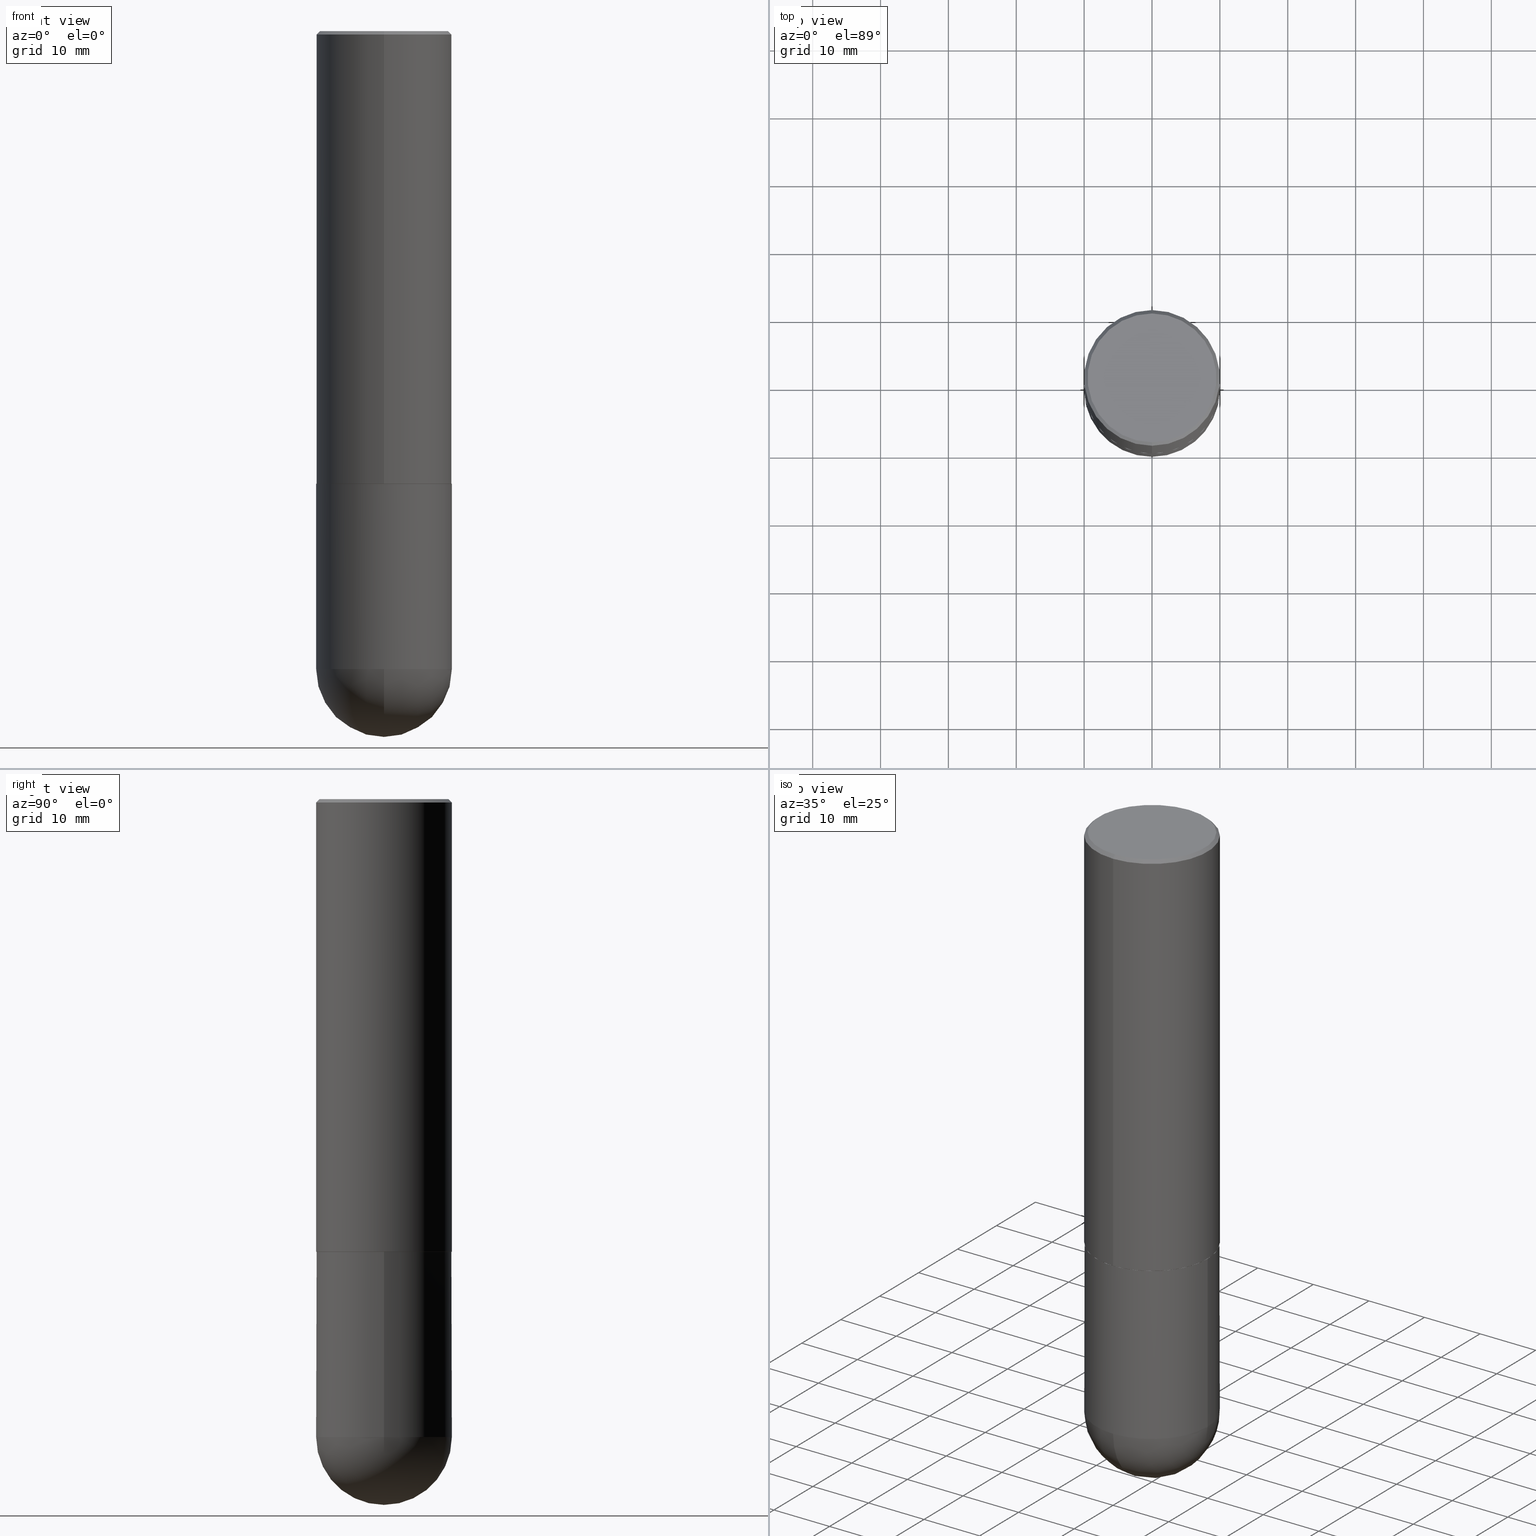
[diagram: canonical four-view strip — front | top / right | iso, engineering-drawing reading convention]
A machine part, canonical four-view strip (front | top / right | iso — engineering-drawing reading convention). The complete STEP part file that produces these views, byte-faithful:
ISO-10303-21;
HEADER;
FILE_DESCRIPTION (( 'STEP AP203' ),
    '1' );
FILE_NAME ('44579.STEP',
    '2024-04-10T11:46:11',
    ( '' ),
    ( '' ),
    'SwSTEP 2.0',
    'SolidWorks 2023',
    '' );
FILE_SCHEMA (( 'CONFIG_CONTROL_DESIGN' ));
ENDSEC;

DATA;
#1 = VERTEX_POINT ( 'NONE', #52 ) ;
#2 = DIRECTION ( 'NONE',  ( -4.937700262164378437E-15, -0.7071067811865208164, 0.7071067811865739960 ) ) ;
#3 = FACE_OUTER_BOUND ( 'NONE', #51, .T. ) ;
#4 = DIRECTION ( 'NONE',  ( -7.105427357600999492E-15, -1.000000000000000000, 0.000000000000000000 ) ) ;
#5 = CLOSED_SHELL ( 'NONE', ( #266, #143, #68, #91, #303 ) ) ;
#6 = AXIS2_PLACEMENT_3D ( 'NONE', #20, #127, #362 ) ;
#7 = APPLICATION_CONTEXT ( 'configuration controlled 3d designs of mechanical parts and assemblies' ) ;
#8 = PLANE ( 'NONE',  #89 ) ;
#9 = CARTESIAN_POINT ( 'NONE',  ( 8.719071180016067419E-29, -1.339545650693076387E-14, -3.700800000000000090 ) ) ;
#10 = CARTESIAN_POINT ( 'NONE',  ( 6.420003766167635957E-29, -9.164210326870732173E-15, -2.625000000000000444 ) ) ;
#11 = AXIS2_PLACEMENT_3D ( 'NONE', #277, #250, #290 ) ;
#12 = APPROVAL_PERSON_ORGANIZATION ( #187, #304, #70 ) ;
#13 = APPROVAL_DATE_TIME ( #328, #76 ) ;
#14 = PERSON_AND_ORGANIZATION ( #201, #183 ) ;
#15 = ORIENTED_EDGE ( 'NONE', *, *, #55, .F. ) ;
#16 = VERTEX_POINT ( 'NONE', #211 ) ;
#17 = AXIS2_PLACEMENT_3D ( 'NONE', #44, #233, #36 ) ;
#18 = EDGE_CURVE ( 'NONE', #121, #236, #56, .T. ) ;
#19 = ORIENTED_EDGE ( 'NONE', *, *, #363, .T. ) ;
#20 = CARTESIAN_POINT ( 'NONE',  ( 0.000000000000000000, 0.000000000000000000, 0.000000000000000000 ) ) ;
#21 = CARTESIAN_POINT ( 'NONE',  ( 9.050190957929953666E-29, -1.292127413879071357E-14, -3.700800000000000090 ) ) ;
#22 = ORIENTED_EDGE ( 'NONE', *, *, #222, .F. ) ;
#23 = CARTESIAN_POINT ( 'NONE',  ( 2.749192406205083217E-15, 0.3936999999999999389, -0.02000000000000146105 ) ) ;
#24 = AXIS2_PLACEMENT_3D ( 'NONE', #344, #186, #29 ) ;
#25 = AXIS2_PLACEMENT_3D ( 'NONE', #42, #386, #133 ) ;
#26 = CARTESIAN_POINT ( 'NONE',  ( -2.742209443527332516E-15, -0.3927000000000091529, -2.625999999999999446 ) ) ;
#27 = ORIENTED_EDGE ( 'NONE', *, *, #86, .T. ) ;
#28 = CC_DESIGN_DATE_AND_TIME_ASSIGNMENT ( #30, #351, ( #175 ) ) ;
#29 = DIRECTION ( 'NONE',  ( -6.982962677686265133E-15, -1.000000000000000000, 4.173946514383900962E-15 ) ) ;
#30 = DATE_AND_TIME ( #253, #140 ) ;
#31 = PRODUCT_DEFINITION_SHAPE ( 'NONE', 'NONE',  #292 ) ;
#32 = DIRECTION ( 'NONE',  ( 5.024295867787889629E-15, 0.7071067811865257013, 0.7071067811865691111 ) ) ;
#33 = DATE_AND_TIME ( #285, #288 ) ;
#34 = VECTOR ( 'NONE', #102, 39.37007874015748143 ) ;
#35 = DIRECTION ( 'NONE',  ( -2.445468806185136597E-29, 3.491481338843145583E-15, 1.000000000000000000 ) ) ;
#36 = DIRECTION ( 'NONE',  ( 1.000000000000000000, -6.982962677686267499E-15, 0.000000000000000000 ) ) ;
#37 = ADVANCED_FACE ( 'NONE', ( #217 ), #198, .T. ) ;
#38 = LINE ( 'NONE', #294, #345 ) ;
#39 = DIRECTION ( 'NONE',  ( -6.982962677686265922E-15, -1.000000000000000000, 4.163344669033672479E-15 ) ) ;
#40 = CIRCLE ( 'NONE', #252, 0.3937000000000003830 ) ;
#41 = EDGE_CURVE ( 'NONE', #405, #236, #377, .T. ) ;
#42 = CARTESIAN_POINT ( 'NONE',  ( -5.529739359596063730E-45, 7.893405734614422993E-31, 2.260990234216733244E-16 ) ) ;
#43 = DIRECTION ( 'NONE',  ( -2.445468806185136597E-29, 3.491481338843145583E-15, 1.000000000000000000 ) ) ;
#44 = CARTESIAN_POINT ( 'NONE',  ( 6.421801085042169169E-29, -9.168629995802101197E-15, -2.626000000000000334 ) ) ;
#45 = APPROVAL_ROLE ( '' ) ;
#46 = AXIS2_PLACEMENT_3D ( 'NONE', #21, #248, #246 ) ;
#47 = EDGE_CURVE ( 'NONE', #376, #300, #113, .T. ) ;
#48 = CIRCLE ( 'NONE', #387, 0.3736999999999997546 ) ;
#49 = PERSON_AND_ORGANIZATION ( #201, #183 ) ;
#50 = ORIENTED_EDGE ( 'NONE', *, *, #168, .F. ) ;
#51 = EDGE_LOOP ( 'NONE', ( #221, #27, #306, #367, #138 ) ) ;
#52 = CARTESIAN_POINT ( 'NONE',  ( -2.742209443527332516E-15, -0.3927000000000091529, -2.625999999999999446 ) ) ;
#53 = AXIS2_PLACEMENT_3D ( 'NONE', #193, #73, #164 ) ;
#54 = CARTESIAN_POINT ( 'NONE',  ( 4.891431440889647024E-31, -6.982255487139634738E-17, -0.02000000000000008715 ) ) ;
#55 = EDGE_CURVE ( 'NONE', #1, #333, #287, .T. ) ;
#56 = LINE ( 'NONE', #247, #192 ) ;
#57 = DIRECTION ( 'NONE',  ( -2.445715720444812897E-29, 3.491127743569801887E-15, 1.000000000000000000 ) ) ;
#58 = ORIENTED_EDGE ( 'NONE', *, *, #272, .F. ) ;
#59 = ORIENTED_EDGE ( 'NONE', *, *, #18, .F. ) ;
#60 = COORDINATED_UNIVERSAL_TIME_OFFSET ( 5, 0, .BEHIND. ) ;
#61 = CARTESIAN_POINT ( 'NONE',  ( 9.050190957929953666E-29, -1.292127413879071357E-14, -3.700800000000000090 ) ) ;
#62 = EDGE_CURVE ( 'NONE', #1, #118, #352, .T. ) ;
#63 = ORIENTED_EDGE ( 'NONE', *, *, #168, .T. ) ;
#64 = CONICAL_SURFACE ( 'NONE', #205, 0.3926999999999999935, 0.7853981633974141952 ) ;
#65 = DIRECTION ( 'NONE',  ( 6.982962677686265922E-15, 1.000000000000000000, -4.163344669033671690E-15 ) ) ;
#66 = DIRECTION ( 'NONE',  ( 2.438088387897960049E-29, -3.491481338843145188E-15, -1.000000000000000000 ) ) ;
#67 = ORIENTED_EDGE ( 'NONE', *, *, #314, .F. ) ;
#68 = ADVANCED_FACE ( 'NONE', ( #307 ), #159, .T. ) ;
#69 = CARTESIAN_POINT ( 'NONE',  ( 0.3936999999999999389, -2.749192406205082822E-15, 1.919750796630859611E-29 ) ) ;
#70 = APPROVAL_ROLE ( '' ) ;
#71 = CYLINDRICAL_SURFACE ( 'NONE', #53, 0.3937000000000001609 ) ;
#72 = APPROVAL_STATUS ( 'not_yet_approved' ) ;
#73 = DIRECTION ( 'NONE',  ( -2.445715720444812897E-29, 3.491127743569801887E-15, 1.000000000000000000 ) ) ;
#74 = DIRECTION ( 'NONE',  ( -1.000000000000000000, 7.105427357601001070E-15, -4.926315508542082329E-29 ) ) ;
#75 = VERTEX_POINT ( 'NONE', #92 ) ;
#76 = APPROVAL ( #154, 'UNSPECIFIED' ) ;
#77 = AXIS2_PLACEMENT_3D ( 'NONE', #188, #251, #161 ) ;
#78 = DIRECTION ( 'NONE',  ( 4.937700262164541731E-15, 0.7071067811865442421, -0.7071067811865507924 ) ) ;
#79 =( GEOMETRIC_REPRESENTATION_CONTEXT ( 3 ) GLOBAL_UNCERTAINTY_ASSIGNED_CONTEXT ( ( #239 ) ) GLOBAL_UNIT_ASSIGNED_CONTEXT ( ( #212, #312, #370 ) ) REPRESENTATION_CONTEXT ( 'NONE', 'WORKASPACE' ) );
#80 = APPLICATION_CONTEXT ( 'configuration controlled 3d designs of mechanical parts and assemblies' ) ;
#81 = MANIFOLD_SOLID_BREP ( 'Body-Move/Copy2[1]', #5 ) ;
#82 = CARTESIAN_POINT ( 'NONE',  ( 0.000000000000000000, 0.000000000000000000, 0.000000000000000000 ) ) ;
#83 = EDGE_CURVE ( 'NONE', #118, #236, #404, .T. ) ;
#84 = CARTESIAN_POINT ( 'NONE',  ( -5.529739359596063730E-45, 7.893405734614422993E-31, 2.260990234216733244E-16 ) ) ;
#85 = AXIS2_PLACEMENT_3D ( 'NONE', #10, #235, #321 ) ;
#86 = EDGE_CURVE ( 'NONE', #311, #376, #412, .T. ) ;
#87 = EDGE_CURVE ( 'NONE', #213, #300, #129, .T. ) ;
#88 = CC_DESIGN_DATE_AND_TIME_ASSIGNMENT ( #180, #117, ( #292 ) ) ;
#89 = AXIS2_PLACEMENT_3D ( 'NONE', #390, #114, #107 ) ;
#90 = PERSON_AND_ORGANIZATION ( #201, #183 ) ;
#91 = ADVANCED_FACE ( 'NONE', ( #384 ), #148, .F. ) ;
#92 = CARTESIAN_POINT ( 'NONE',  ( 2.749192406205172752E-15, 0.3936999999999870048, -3.700800000000001866 ) ) ;
#93 = ORIENTED_EDGE ( 'NONE', *, *, #395, .T. ) ;
#94 = PERSON_AND_ORGANIZATION_ROLE ( 'design_owner' ) ;
#95 = DIRECTION ( 'NONE',  ( 1.000000000000000000, -6.982962677686269866E-15, 0.000000000000000000 ) ) ;
#96 = ORIENTED_EDGE ( 'NONE', *, *, #47, .T. ) ;
#97 = AXIS2_PLACEMENT_3D ( 'NONE', #406, #382, #178 ) ;
#98 = PERSON_AND_ORGANIZATION_ROLE ( 'classification_officer' ) ;
#99 = APPROVAL_PERSON_ORGANIZATION ( #403, #76, #203 ) ;
#100 = DIRECTION ( 'NONE',  ( 2.445715720444812897E-29, -3.491127743569801887E-15, -1.000000000000000000 ) ) ;
#101 = ORIENTED_EDGE ( 'NONE', *, *, #86, .F. ) ;
#102 = DIRECTION ( 'NONE',  ( -2.445468806185136877E-29, 3.491481338843145188E-15, 1.000000000000000000 ) ) ;
#103 = ORIENTED_EDGE ( 'NONE', *, *, #249, .T. ) ;
#104 = DIRECTION ( 'NONE',  ( -1.000000000000000000, 6.982962677686265922E-15, -4.883557194083112340E-29 ) ) ;
#105 = ORIENTED_EDGE ( 'NONE', *, *, #395, .F. ) ;
#106 = CC_DESIGN_APPROVAL ( #130, ( #338 ) ) ;
#107 = DIRECTION ( 'NONE',  ( -6.982962677686265922E-15, -1.000000000000000000, 3.491127743569801887E-15 ) ) ;
#108 = ORIENTED_EDGE ( 'NONE', *, *, #185, .T. ) ;
#109 = CARTESIAN_POINT ( 'NONE',  ( 2.793854037008779363E-15, 0.3926999999999908897, -2.626000000000002554 ) ) ;
#110 = ADVANCED_FACE ( 'NONE', ( #379 ), #281, .F. ) ;
#111 = CARTESIAN_POINT ( 'NONE',  ( 6.421801085042169169E-29, -9.168629995802101197E-15, -2.626000000000000334 ) ) ;
#112 = DIRECTION ( 'NONE',  ( 1.000000000000000000, -6.982962677686269866E-15, 0.000000000000000000 ) ) ;
#113 = CIRCLE ( 'NONE', #204, 0.3937000000000000499 ) ;
#114 = DIRECTION ( 'NONE',  ( -2.445715720444812897E-29, 3.491127743569801887E-15, 1.000000000000000000 ) ) ;
#115 = VERTEX_POINT ( 'NONE', #215 ) ;
#116 = CARTESIAN_POINT ( 'NONE',  ( 4.891431440889647024E-31, -6.982255487139634738E-17, -0.02000000000000008715 ) ) ;
#117 = DATE_TIME_ROLE ( 'creation_date' ) ;
#118 = VERTEX_POINT ( 'NONE', #313 ) ;
#119 = EDGE_LOOP ( 'NONE', ( #15, #402 ) ) ;
#120 = DIRECTION ( 'NONE',  ( 2.445715720444812897E-29, -3.491127743569801887E-15, -1.000000000000000000 ) ) ;
#121 = VERTEX_POINT ( 'NONE', #408 ) ;
#122 = PERSON_AND_ORGANIZATION ( #201, #183 ) ;
#123 = CIRCLE ( 'NONE', #97, 0.3937000000000000499 ) ;
#124 = CALENDAR_DATE ( 2024, 10, 4 ) ;
#125 = DIRECTION ( 'NONE',  ( -2.445715720444812897E-29, 3.491127743569801887E-15, 1.000000000000000000 ) ) ;
#126 = EDGE_LOOP ( 'NONE', ( #59, #105, #147, #353 ) ) ;
#127 = DIRECTION ( 'NONE',  ( 0.000000000000000000, 0.000000000000000000, 1.000000000000000000 ) ) ;
#128 = DIRECTION ( 'NONE',  ( 1.000000000000000000, -6.982962677686269866E-15, 0.000000000000000000 ) ) ;
#129 = LINE ( 'NONE', #69, #318 ) ;
#130 = APPROVAL ( #238, 'UNSPECIFIED' ) ;
#131 = DIRECTION ( 'NONE',  ( -2.445468806185136877E-29, 3.491481338843145188E-15, 1.000000000000000000 ) ) ;
#132 = ORIENTED_EDGE ( 'NONE', *, *, #158, .F. ) ;
#133 = DIRECTION ( 'NONE',  ( -6.982962677686265922E-15, -1.000000000000000000, 3.491127743569801493E-15 ) ) ;
#134 = CIRCLE ( 'NONE', #365, 0.3937000000000002720 ) ;
#135 = DIRECTION ( 'NONE',  ( -2.445468806185136597E-29, 3.491481338843145583E-15, 1.000000000000000000 ) ) ;
#136 = CYLINDRICAL_SURFACE ( 'NONE', #240, 0.3937000000000001609 ) ;
#137 = DIRECTION ( 'NONE',  ( -2.445715720444812897E-29, 3.491127743569801887E-15, 1.000000000000000000 ) ) ;
#138 = ORIENTED_EDGE ( 'NONE', *, *, #314, .T. ) ;
#139 = CARTESIAN_POINT ( 'NONE',  ( -0.3936999999999999389, -8.247545316608896543E-15, -3.700800000000000090 ) ) ;
#140 = LOCAL_TIME ( 7, 46, 11.00000000000000000, #257 ) ;
#141 = DIRECTION ( 'NONE',  ( -6.982962677686265133E-15, -1.000000000000000000, 4.173946514383900962E-15 ) ) ;
#142 = PERSON_AND_ORGANIZATION_ROLE ( 'creator' ) ;
#143 = ADVANCED_FACE ( 'NONE', ( #341 ), #375, .T. ) ;
#144 = EDGE_CURVE ( 'NONE', #75, #311, #295, .T. ) ;
#145 = CC_DESIGN_PERSON_AND_ORGANIZATION_ASSIGNMENT ( #122, #243, ( #338 ) ) ;
#146 = AXIS2_PLACEMENT_3D ( 'NONE', #354, #135, #112 ) ;
#147 = ORIENTED_EDGE ( 'NONE', *, *, #268, .T. ) ;
#148 = PLANE ( 'NONE',  #165 ) ;
#149 = CONICAL_SURFACE ( 'NONE', #24, 0.3926999999999999935, 0.7853981633974141952 ) ;
#150 = EDGE_LOOP ( 'NONE', ( #103, #242, #50, #189 ) ) ;
#151 = CIRCLE ( 'NONE', #330, 0.3937000000000003830 ) ;
#152 = CARTESIAN_POINT ( 'NONE',  ( 8.719071180016067419E-29, -1.339545650693076387E-14, -3.700800000000000090 ) ) ;
#153 = DIRECTION ( 'NONE',  ( 6.982962677686265133E-15, 1.000000000000000000, -3.491137977679279424E-15 ) ) ;
#154 = APPROVAL_STATUS ( 'not_yet_approved' ) ;
#155 = CARTESIAN_POINT ( 'NONE',  ( 9.698686197413653023E-29, -1.474594553779209640E-14, -4.094500000000000028 ) ) ;
#156 = EDGE_LOOP ( 'NONE', ( #208, #397, #63, #275 ) ) ;
#157 = PRODUCT ( '44579', '44579', '', ( #374 ) ) ;
#158 = EDGE_CURVE ( 'NONE', #333, #16, #274, .T. ) ;
#159 = SPHERICAL_SURFACE ( 'NONE', #77, 0.3937000000000003830 ) ;
#160 = AXIS2_PLACEMENT_3D ( 'NONE', #152, #104, #65 ) ;
#161 = DIRECTION ( 'NONE',  ( 6.982962677686265922E-15, 1.000000000000000000, -4.163344669033671690E-15 ) ) ;
#162 = FACE_OUTER_BOUND ( 'NONE', #190, .T. ) ;
#163 = COORDINATED_UNIVERSAL_TIME_OFFSET ( 5, 0, .BEHIND. ) ;
#164 = DIRECTION ( 'NONE',  ( -6.982962677686265922E-15, -1.000000000000000000, 3.491127743569801493E-15 ) ) ;
#165 = AXIS2_PLACEMENT_3D ( 'NONE', #191, #66, #317 ) ;
#166 = CC_DESIGN_APPROVAL ( #76, ( #292 ) ) ;
#167 = DIRECTION ( 'NONE',  ( -2.445715720444812897E-29, 3.491127743569801887E-15, 1.000000000000000000 ) ) ;
#168 = EDGE_CURVE ( 'NONE', #236, #405, #123, .T. ) ;
#169 = FACE_OUTER_BOUND ( 'NONE', #126, .T. ) ;
#170 = DIRECTION ( 'NONE',  ( 2.445715720444812897E-29, -3.491127743569801887E-15, -1.000000000000000000 ) ) ;
#171 = DATE_AND_TIME ( #342, #302 ) ;
#172 = AXIS2_PLACEMENT_3D ( 'NONE', #82, #325, #258 ) ;
#173 = EDGE_CURVE ( 'NONE', #372, #213, #323, .T. ) ;
#174 = CC_DESIGN_PERSON_AND_ORGANIZATION_ASSIGNMENT ( #214, #94, ( #157 ) ) ;
#175 = SECURITY_CLASSIFICATION ( '', '', #368 ) ;
#176 = ORIENTED_EDGE ( 'NONE', *, *, #272, .T. ) ;
#177 = DIRECTION ( 'NONE',  ( -6.982962677686265922E-15, -1.000000000000000000, 3.491127743569801493E-15 ) ) ;
#178 = DIRECTION ( 'NONE',  ( -6.982962677686265133E-15, -1.000000000000000000, 3.491137977679279424E-15 ) ) ;
#179 = ORIENTED_EDGE ( 'NONE', *, *, #385, .F. ) ;
#180 = DATE_AND_TIME ( #394, #359 ) ;
#181 = DIRECTION ( 'NONE',  ( -2.445468806185136597E-29, 3.491481338843145583E-15, 1.000000000000000000 ) ) ;
#182 = CIRCLE ( 'NONE', #273, 0.3936999999999999389 ) ;
#183 = ORGANIZATION ( 'UNSPECIFIED', 'UNSPECIFIED', '' ) ;
#184 = ORIENTED_EDGE ( 'NONE', *, *, #62, .T. ) ;
#185 = EDGE_CURVE ( 'NONE', #311, #372, #182, .T. ) ;
#186 = DIRECTION ( 'NONE',  ( -2.445715720444812897E-29, 3.491127743569801887E-15, 1.000000000000000000 ) ) ;
#187 = PERSON_AND_ORGANIZATION ( #201, #183 ) ;
#188 = CARTESIAN_POINT ( 'NONE',  ( 8.719071180016067419E-29, -1.339545650693076387E-14, -3.700800000000000090 ) ) ;
#189 = ORIENTED_EDGE ( 'NONE', *, *, #83, .F. ) ;
#190 = EDGE_LOOP ( 'NONE', ( #22, #334, #356, #241 ) ) ;
#191 = CARTESIAN_POINT ( 'NONE',  ( 2.749192406205147114E-15, 0.3936999999999908906, -2.626000000000002110 ) ) ;
#192 = VECTOR ( 'NONE', #410, 39.37007874015748143 ) ;
#193 = CARTESIAN_POINT ( 'NONE',  ( 0.000000000000000000, 0.000000000000000000, 0.000000000000000000 ) ) ;
#194 = CARTESIAN_POINT ( 'NONE',  ( 0.000000000000000000, 0.000000000000000000, 0.000000000000000000 ) ) ;
#195 = ADVANCED_FACE ( 'NONE', ( #219 ), #149, .T. ) ;
#196 = DIMENSIONAL_EXPONENTS ( 1.000000000000000000, 0.000000000000000000, 0.000000000000000000, 0.000000000000000000, 0.000000000000000000, 0.000000000000000000, 0.000000000000000000 ) ;
#197 = CARTESIAN_POINT ( 'NONE',  ( -2.700978061722651252E-15, -0.3937000000000001054, -0.01999999999999870978 ) ) ;
#198 = CONICAL_SURFACE ( 'NONE', #337, 0.3937000000000000499, 0.7853981633974471688 ) ;
#199 = LOCAL_TIME ( 7, 46, 11.00000000000000000, #298 ) ;
#200 = DIRECTION ( 'NONE',  ( 1.000000000000000000, -6.982962677686266711E-15, 4.876176775795935793E-29 ) ) ;
#201 = PERSON ( 'UNSPECIFIED', 'UNSPECIFIED', 'UNSPECIFIED', ('UNSPECIFIED'), ('UNSPECIFIED'), ('UNSPECIFIED') ) ;
#202 = CARTESIAN_POINT ( 'NONE',  ( 0.000000000000000000, 0.000000000000000000, 0.000000000000000000 ) ) ;
#203 = APPROVAL_ROLE ( '' ) ;
#204 = AXIS2_PLACEMENT_3D ( 'NONE', #111, #43, #282 ) ;
#205 = AXIS2_PLACEMENT_3D ( 'NONE', #278, #57, #141 ) ;
#206 = VERTEX_POINT ( 'NONE', #155 ) ;
#207 = EDGE_LOOP ( 'NONE', ( #179, #176, #67, #401 ) ) ;
#208 = ORIENTED_EDGE ( 'NONE', *, *, #346, .F. ) ;
#209 = CLOSED_SHELL ( 'NONE', ( #407, #381, #37, #380, #320, #195, #289, #110 ) ) ;
#210 = CC_DESIGN_SECURITY_CLASSIFICATION ( #175, ( #338 ) ) ;
#211 = CARTESIAN_POINT ( 'NONE',  ( 2.797406750687547524E-15, 0.3936999999999911681, -2.625000000000002220 ) ) ;
#212 =( CONVERSION_BASED_UNIT ( 'INCH', #309 ) LENGTH_UNIT ( ) NAMED_UNIT ( #196 ) );
#213 = VERTEX_POINT ( 'NONE', #225 ) ;
#214 = PERSON_AND_ORGANIZATION ( #201, #183 ) ;
#215 = CARTESIAN_POINT ( 'NONE',  ( 2.679362779428219524E-15, 0.3736999999999997546, -1.078535414350361021E-15 ) ) ;
#216 = EDGE_LOOP ( 'NONE', ( #58, #383, #226, #305 ) ) ;
#217 = FACE_OUTER_BOUND ( 'NONE', #156, .T. ) ;
#218 = PERSON_AND_ORGANIZATION_ROLE ( 'creator' ) ;
#219 = FACE_OUTER_BOUND ( 'NONE', #364, .T. ) ;
#220 = VECTOR ( 'NONE', #32, 39.37007874015748854 ) ;
#221 = ORIENTED_EDGE ( 'NONE', *, *, #144, .T. ) ;
#222 = EDGE_CURVE ( 'NONE', #16, #405, #347, .T. ) ;
#223 = CC_DESIGN_PERSON_AND_ORGANIZATION_ASSIGNMENT ( #49, #142, ( #338 ) ) ;
#224 = ADVANCED_BREP_SHAPE_REPRESENTATION ( '44579', ( #81, #331, #6 ), #79 ) ;
#225 = CARTESIAN_POINT ( 'NONE',  ( 0.3936999999999999389, -1.379414447350149376E-14, -3.700800000000000090 ) ) ;
#226 = ORIENTED_EDGE ( 'NONE', *, *, #185, .F. ) ;
#227 = DIRECTION ( 'NONE',  ( -6.982962677686265133E-15, -1.000000000000000000, 4.173946514383900962E-15 ) ) ;
#228 = ORIENTED_EDGE ( 'NONE', *, *, #326, .T. ) ;
#229 = CARTESIAN_POINT ( 'NONE',  ( 2.790301323329977282E-15, 0.3926999999999908897, -2.626000000000002554 ) ) ;
#230 = ORIENTED_EDGE ( 'NONE', *, *, #55, .T. ) ;
#231 = CONICAL_SURFACE ( 'NONE', #260, 0.3937000000000000499, 0.7853981633974471688 ) ;
#232 = DIRECTION ( 'NONE',  ( -2.445715720444812897E-29, 3.491127743569801887E-15, 1.000000000000000000 ) ) ;
#233 = DIRECTION ( 'NONE',  ( -2.445468806185136597E-29, 3.491481338843145583E-15, 1.000000000000000000 ) ) ;
#234 = CARTESIAN_POINT ( 'NONE',  ( -0.3937000000000000499, -8.247545316608893388E-15, -2.626000000000000334 ) ) ;
#235 = DIRECTION ( 'NONE',  ( -2.445715720444812897E-29, 3.491127743569801887E-15, 1.000000000000000000 ) ) ;
#236 = VERTEX_POINT ( 'NONE', #197 ) ;
#237 = DIRECTION ( 'NONE',  ( 6.982962677686265133E-15, 1.000000000000000000, -3.491137977679279424E-15 ) ) ;
#238 = APPROVAL_STATUS ( 'not_yet_approved' ) ;
#239 = UNCERTAINTY_MEASURE_WITH_UNIT (LENGTH_MEASURE( 1.000000000000000082E-05 ), #212, 'distance_accuracy_value', 'NONE');
#240 = AXIS2_PLACEMENT_3D ( 'NONE', #202, #327, #262 ) ;
#241 = ORIENTED_EDGE ( 'NONE', *, *, #41, .F. ) ;
#242 = ORIENTED_EDGE ( 'NONE', *, *, #222, .T. ) ;
#243 = PERSON_AND_ORGANIZATION_ROLE ( 'design_supplier' ) ;
#244 = AXIS2_PLACEMENT_3D ( 'NONE', #350, #125, #227 ) ;
#245 =( LENGTH_UNIT ( ) NAMED_UNIT ( * ) SI_UNIT ( $, .METRE. ) );
#246 = DIRECTION ( 'NONE',  ( 1.000000000000000000, -6.982962677686269866E-15, 0.000000000000000000 ) ) ;
#247 = CARTESIAN_POINT ( 'NONE',  ( -2.700978061722651252E-15, -0.3937000000000001054, -0.01999999999999870978 ) ) ;
#248 = DIRECTION ( 'NONE',  ( -2.445468806185136597E-29, 3.491481338843145583E-15, 1.000000000000000000 ) ) ;
#249 = EDGE_CURVE ( 'NONE', #118, #16, #259, .T. ) ;
#250 = DIRECTION ( 'NONE',  ( -2.445715720444812897E-29, 3.491127743569801887E-15, 1.000000000000000000 ) ) ;
#251 = DIRECTION ( 'NONE',  ( -1.000000000000000000, 6.982962677686265922E-15, -4.883557194083112340E-29 ) ) ;
#252 = AXIS2_PLACEMENT_3D ( 'NONE', #286, #74, #4 ) ;
#253 = CALENDAR_DATE ( 2024, 10, 4 ) ;
#254 = CARTESIAN_POINT ( 'NONE',  ( 9.050190957929953666E-29, -1.292127413879071357E-14, -3.700800000000000090 ) ) ;
#255 = DIRECTION ( 'NONE',  ( 6.982962677686265922E-15, 1.000000000000000000, -3.491127743569801887E-15 ) ) ;
#256 = ORIENTED_EDGE ( 'NONE', *, *, #346, .T. ) ;
#257 = COORDINATED_UNIVERSAL_TIME_OFFSET ( 5, 0, .BEHIND. ) ;
#258 = DIRECTION ( 'NONE',  ( 1.000000000000000000, -6.982962677686266711E-15, 4.876176775795935793E-29 ) ) ;
#259 = CIRCLE ( 'NONE', #85, 0.3937000000000002720 ) ;
#260 = AXIS2_PLACEMENT_3D ( 'NONE', #116, #170, #237 ) ;
#261 = CARTESIAN_POINT ( 'NONE',  ( 6.420003766167635957E-29, -9.164210326870732173E-15, -2.625000000000000444 ) ) ;
#262 = DIRECTION ( 'NONE',  ( -6.982962677686265922E-15, -1.000000000000000000, 3.491127743569801493E-15 ) ) ;
#263 = EDGE_CURVE ( 'NONE', #16, #118, #134, .T. ) ;
#264 = DIRECTION ( 'NONE',  ( 6.982962677686265133E-15, 1.000000000000000000, 0.000000000000000000 ) ) ;
#265 = DIRECTION ( 'NONE',  ( -6.982962677686265133E-15, -1.000000000000000000, 4.173946514383900962E-15 ) ) ;
#266 = ADVANCED_FACE ( 'NONE', ( #3 ), #284, .T. ) ;
#267 = APPLICATION_PROTOCOL_DEFINITION ( 'international standard', 'config_control_design', 1994, #7 ) ;
#268 = EDGE_CURVE ( 'NONE', #115, #405, #38, .T. ) ;
#269 = ORIENTED_EDGE ( 'NONE', *, *, #158, .T. ) ;
#270 = ORIENTED_EDGE ( 'NONE', *, *, #62, .F. ) ;
#271 = ORIENTED_EDGE ( 'NONE', *, *, #173, .T. ) ;
#272 = EDGE_CURVE ( 'NONE', #206, #75, #151, .T. ) ;
#273 = AXIS2_PLACEMENT_3D ( 'NONE', #61, #181, #95 ) ;
#274 = LINE ( 'NONE', #229, #220 ) ;
#275 = ORIENTED_EDGE ( 'NONE', *, *, #268, .F. ) ;
#276 = APPLICATION_PROTOCOL_DEFINITION ( 'international standard', 'config_control_design', 1994, #80 ) ;
#277 = CARTESIAN_POINT ( 'NONE',  ( 4.891431440889647024E-31, -6.982255487139634738E-17, -0.02000000000000008715 ) ) ;
#278 = CARTESIAN_POINT ( 'NONE',  ( 6.422449481888080522E-29, -9.167701454614302225E-15, -2.626000000000000778 ) ) ;
#279 = CARTESIAN_POINT ( 'NONE',  ( -0.3936999999999999389, 2.797406750687513998E-15, -1.936584745033356455E-29 ) ) ;
#280 = APPROVAL_DATE_TIME ( #33, #304 ) ;
#281 = PLANE ( 'NONE',  #358 ) ;
#282 = DIRECTION ( 'NONE',  ( 1.000000000000000000, -6.982962677686267499E-15, 0.000000000000000000 ) ) ;
#283 = SHAPE_DEFINITION_REPRESENTATION ( #31, #224 ) ;
#284 = CYLINDRICAL_SURFACE ( 'NONE', #369, 0.3936999999999999389 ) ;
#285 = CALENDAR_DATE ( 2024, 10, 4 ) ;
#286 = CARTESIAN_POINT ( 'NONE',  ( 8.719071180016067419E-29, -1.339545650693076387E-14, -3.700800000000000090 ) ) ;
#287 = CIRCLE ( 'NONE', #244, 0.3926999999999999935 ) ;
#288 = LOCAL_TIME ( 7, 46, 11.00000000000000000, #163 ) ;
#289 = ADVANCED_FACE ( 'NONE', ( #388 ), #8, .F. ) ;
#290 = DIRECTION ( 'NONE',  ( -6.982962677686265133E-15, -1.000000000000000000, 3.491137977679279424E-15 ) ) ;
#291 = DIRECTION ( 'NONE',  ( 1.000000000000000000, -6.982962677686265922E-15, 4.883557194083112340E-29 ) ) ;
#292 = PRODUCT_DEFINITION ( 'UNKNOWN', '', #338, #400 ) ;
#293 = CARTESIAN_POINT ( 'NONE',  ( -2.797406750687425645E-15, -0.3937000000000133171, -3.700799999999998313 ) ) ;
#294 = CARTESIAN_POINT ( 'NONE',  ( 2.749192406205083217E-15, 0.3936999999999999389, -0.02000000000000146105 ) ) ;
#295 = CIRCLE ( 'NONE', #391, 0.3936999999999999389 ) ;
#296 = AXIS2_PLACEMENT_3D ( 'NONE', #355, #232, #265 ) ;
#297 = FACE_OUTER_BOUND ( 'NONE', #299, .T. ) ;
#298 = COORDINATED_UNIVERSAL_TIME_OFFSET ( 5, 0, .BEHIND. ) ;
#299 = EDGE_LOOP ( 'NONE', ( #230, #269, #308, #270 ) ) ;
#300 = VERTEX_POINT ( 'NONE', #322 ) ;
#301 = VECTOR ( 'NONE', #371, 39.37007874015748143 ) ;
#302 = LOCAL_TIME ( 7, 46, 11.00000000000000000, #396 ) ;
#303 = ADVANCED_FACE ( 'NONE', ( #357 ), #360, .T. ) ;
#304 = APPROVAL ( #72, 'UNSPECIFIED' ) ;
#305 = ORIENTED_EDGE ( 'NONE', *, *, #144, .F. ) ;
#306 = ORIENTED_EDGE ( 'NONE', *, *, #326, .F. ) ;
#307 = FACE_OUTER_BOUND ( 'NONE', #207, .T. ) ;
#308 = ORIENTED_EDGE ( 'NONE', *, *, #249, .F. ) ;
#309 = LENGTH_MEASURE_WITH_UNIT ( LENGTH_MEASURE( 0.02539999999999999897 ), #245 );
#310 = CARTESIAN_POINT ( 'NONE',  ( -2.749192406205084005E-15, -0.3937000000000001609, 1.374456992643431481E-15 ) ) ;
#311 = VERTEX_POINT ( 'NONE', #139 ) ;
#312 =( NAMED_UNIT ( * ) PLANE_ANGLE_UNIT ( ) SI_UNIT ( $, .RADIAN. ) );
#313 = CARTESIAN_POINT ( 'NONE',  ( -2.749192406205020897E-15, -0.3937000000000094313, -2.624999999999999112 ) ) ;
#314 = EDGE_CURVE ( 'NONE', #213, #75, #366, .T. ) ;
#315 = CARTESIAN_POINT ( 'NONE',  ( 2.609533152651355831E-15, 0.3736999999999997546, -1.191584926061197412E-15 ) ) ;
#316 = EDGE_LOOP ( 'NONE', ( #228, #96 ) ) ;
#317 = DIRECTION ( 'NONE',  ( -1.000000000000000000, 6.982962677686265922E-15, -4.876176775795935793E-29 ) ) ;
#318 = VECTOR ( 'NONE', #131, 39.37007874015748143 ) ;
#319 = CARTESIAN_POINT ( 'NONE',  ( 2.797406750687515181E-15, 0.3937000000000001609, -1.374456992643431481E-15 ) ) ;
#320 = ADVANCED_FACE ( 'NONE', ( #162 ), #136, .T. ) ;
#321 = DIRECTION ( 'NONE',  ( -6.982962677686265922E-15, -1.000000000000000000, 4.163344669033672479E-15 ) ) ;
#322 = CARTESIAN_POINT ( 'NONE',  ( 0.3937000000000000499, -1.191782240200718599E-14, -2.626000000000000334 ) ) ;
#323 = CIRCLE ( 'NONE', #46, 0.3936999999999999389 ) ;
#324 = APPROVAL_PERSON_ORGANIZATION ( #14, #130, #45 ) ;
#325 = DIRECTION ( 'NONE',  ( -2.445468806185136597E-29, 3.491481338843145583E-15, 1.000000000000000000 ) ) ;
#326 = EDGE_CURVE ( 'NONE', #300, #376, #399, .T. ) ;
#327 = DIRECTION ( 'NONE',  ( -2.445715720444812897E-29, 3.491127743569801887E-15, 1.000000000000000000 ) ) ;
#328 = DATE_AND_TIME ( #124, #199 ) ;
#329 = VECTOR ( 'NONE', #137, 39.37007874015748143 ) ;
#330 = AXIS2_PLACEMENT_3D ( 'NONE', #9, #291, #264 ) ;
#331 = MANIFOLD_SOLID_BREP ( 'Body-Move/Copy2[2]', #209 ) ;
#332 = APPROVAL_DATE_TIME ( #171, #130 ) ;
#333 = VERTEX_POINT ( 'NONE', #109 ) ;
#334 = ORIENTED_EDGE ( 'NONE', *, *, #263, .T. ) ;
#335 = ORIENTED_EDGE ( 'NONE', *, *, #263, .F. ) ;
#336 = CC_DESIGN_PERSON_AND_ORGANIZATION_ASSIGNMENT ( #90, #98, ( #175 ) ) ;
#337 = AXIS2_PLACEMENT_3D ( 'NONE', #54, #120, #153 ) ;
#338 = PRODUCT_DEFINITION_FORMATION_WITH_SPECIFIED_SOURCE ( 'ANY', '', #157, .NOT_KNOWN. ) ;
#339 = ORIENTED_EDGE ( 'NONE', *, *, #47, .F. ) ;
#340 = PERSON_AND_ORGANIZATION ( #201, #183 ) ;
#341 = FACE_OUTER_BOUND ( 'NONE', #216, .T. ) ;
#342 = CALENDAR_DATE ( 2024, 10, 4 ) ;
#343 = VECTOR ( 'NONE', #2, 39.37007874015748854 ) ;
#344 = CARTESIAN_POINT ( 'NONE',  ( 6.422449481888080522E-29, -9.167701454614302225E-15, -2.626000000000000778 ) ) ;
#345 = VECTOR ( 'NONE', #78, 39.37007874015748143 ) ;
#346 = EDGE_CURVE ( 'NONE', #121, #115, #378, .T. ) ;
#347 = LINE ( 'NONE', #319, #329 ) ;
#348 = EDGE_LOOP ( 'NONE', ( #101, #108, #271, #373, #339 ) ) ;
#349 = PRODUCT_RELATED_PRODUCT_CATEGORY ( 'detail', '', ( #157 ) ) ;
#350 = CARTESIAN_POINT ( 'NONE',  ( 6.422449481888080522E-29, -9.167701454614302225E-15, -2.626000000000000778 ) ) ;
#351 = DATE_TIME_ROLE ( 'classification_date' ) ;
#352 = LINE ( 'NONE', #26, #343 ) ;
#353 = ORIENTED_EDGE ( 'NONE', *, *, #41, .T. ) ;
#354 = CARTESIAN_POINT ( 'NONE',  ( 9.050190957929953666E-29, -1.292127413879071357E-14, -3.700800000000000090 ) ) ;
#355 = CARTESIAN_POINT ( 'NONE',  ( 6.422449481888080522E-29, -9.167701454614302225E-15, -2.626000000000000778 ) ) ;
#356 = ORIENTED_EDGE ( 'NONE', *, *, #83, .T. ) ;
#357 = FACE_OUTER_BOUND ( 'NONE', #348, .T. ) ;
#358 = AXIS2_PLACEMENT_3D ( 'NONE', #315, #100, #255 ) ;
#359 = LOCAL_TIME ( 7, 46, 11.00000000000000000, #60 ) ;
#360 = CYLINDRICAL_SURFACE ( 'NONE', #172, 0.3936999999999999389 ) ;
#361 = DIRECTION ( 'NONE',  ( -2.445715720444812897E-29, 3.491127743569801887E-15, 1.000000000000000000 ) ) ;
#362 = DIRECTION ( 'NONE',  ( 1.000000000000000000, 0.000000000000000000, 0.000000000000000000 ) ) ;
#363 = EDGE_CURVE ( 'NONE', #333, #1, #398, .T. ) ;
#364 = EDGE_LOOP ( 'NONE', ( #132, #19, #184, #335 ) ) ;
#365 = AXIS2_PLACEMENT_3D ( 'NONE', #261, #167, #39 ) ;
#366 = CIRCLE ( 'NONE', #146, 0.3936999999999999389 ) ;
#367 = ORIENTED_EDGE ( 'NONE', *, *, #87, .F. ) ;
#368 = SECURITY_CLASSIFICATION_LEVEL ( 'unclassified' ) ;
#369 = AXIS2_PLACEMENT_3D ( 'NONE', #194, #389, #200 ) ;
#370 =( NAMED_UNIT ( * ) SI_UNIT ( $, .STERADIAN. ) SOLID_ANGLE_UNIT ( ) );
#371 = DIRECTION ( 'NONE',  ( -2.445715720444812897E-29, 3.491127743569801887E-15, 1.000000000000000000 ) ) ;
#372 = VERTEX_POINT ( 'NONE', #293 ) ;
#373 = ORIENTED_EDGE ( 'NONE', *, *, #87, .T. ) ;
#374 = MECHANICAL_CONTEXT ( 'NONE', #80, 'mechanical' ) ;
#375 = SPHERICAL_SURFACE ( 'NONE', #160, 0.3937000000000003830 ) ;
#376 = VERTEX_POINT ( 'NONE', #234 ) ;
#377 = CIRCLE ( 'NONE', #11, 0.3937000000000000499 ) ;
#378 = CIRCLE ( 'NONE', #25, 0.3736999999999997546 ) ;
#379 = FACE_OUTER_BOUND ( 'NONE', #392, .T. ) ;
#380 = ADVANCED_FACE ( 'NONE', ( #169 ), #231, .T. ) ;
#381 = ADVANCED_FACE ( 'NONE', ( #393 ), #71, .T. ) ;
#382 = DIRECTION ( 'NONE',  ( -2.445715720444812897E-29, 3.491127743569801887E-15, 1.000000000000000000 ) ) ;
#383 = ORIENTED_EDGE ( 'NONE', *, *, #385, .T. ) ;
#384 = FACE_OUTER_BOUND ( 'NONE', #316, .T. ) ;
#385 = EDGE_CURVE ( 'NONE', #206, #372, #40, .T. ) ;
#386 = DIRECTION ( 'NONE',  ( -2.445715720444812897E-29, 3.491127743569801887E-15, 1.000000000000000000 ) ) ;
#387 = AXIS2_PLACEMENT_3D ( 'NONE', #84, #361, #177 ) ;
#388 = FACE_OUTER_BOUND ( 'NONE', #119, .T. ) ;
#389 = DIRECTION ( 'NONE',  ( -2.445468806185136597E-29, 3.491481338843145583E-15, 1.000000000000000000 ) ) ;
#390 = CARTESIAN_POINT ( 'NONE',  ( 6.422449481888080522E-29, -9.167701454614302225E-15, -2.626000000000000778 ) ) ;
#391 = AXIS2_PLACEMENT_3D ( 'NONE', #254, #35, #128 ) ;
#392 = EDGE_LOOP ( 'NONE', ( #93, #256 ) ) ;
#393 = FACE_OUTER_BOUND ( 'NONE', #150, .T. ) ;
#394 = CALENDAR_DATE ( 2024, 10, 4 ) ;
#395 = EDGE_CURVE ( 'NONE', #115, #121, #48, .T. ) ;
#396 = COORDINATED_UNIVERSAL_TIME_OFFSET ( 5, 0, .BEHIND. ) ;
#397 = ORIENTED_EDGE ( 'NONE', *, *, #18, .T. ) ;
#398 = CIRCLE ( 'NONE', #296, 0.3926999999999999935 ) ;
#399 = CIRCLE ( 'NONE', #17, 0.3937000000000000499 ) ;
#400 = DESIGN_CONTEXT ( 'detailed design', #7, 'design' ) ;
#401 = ORIENTED_EDGE ( 'NONE', *, *, #173, .F. ) ;
#402 = ORIENTED_EDGE ( 'NONE', *, *, #363, .F. ) ;
#403 = PERSON_AND_ORGANIZATION ( #201, #183 ) ;
#404 = LINE ( 'NONE', #310, #301 ) ;
#405 = VERTEX_POINT ( 'NONE', #23 ) ;
#406 = CARTESIAN_POINT ( 'NONE',  ( 4.891431440889647024E-31, -6.982255487139634738E-17, -0.02000000000000008715 ) ) ;
#407 = ADVANCED_FACE ( 'NONE', ( #297 ), #64, .T. ) ;
#408 = CARTESIAN_POINT ( 'NONE',  ( -2.632373081744935132E-15, -0.3736999999999997546, 1.530733461193707374E-15 ) ) ;
#409 = CC_DESIGN_PERSON_AND_ORGANIZATION_ASSIGNMENT ( #340, #218, ( #292 ) ) ;
#410 = DIRECTION ( 'NONE',  ( -4.851104656540957964E-15, -0.7071067811865491270, -0.7071067811865459074 ) ) ;
#411 = CC_DESIGN_APPROVAL ( #304, ( #175 ) ) ;
#412 = LINE ( 'NONE', #279, #34 ) ;
ENDSEC;
END-ISO-10303-21;
